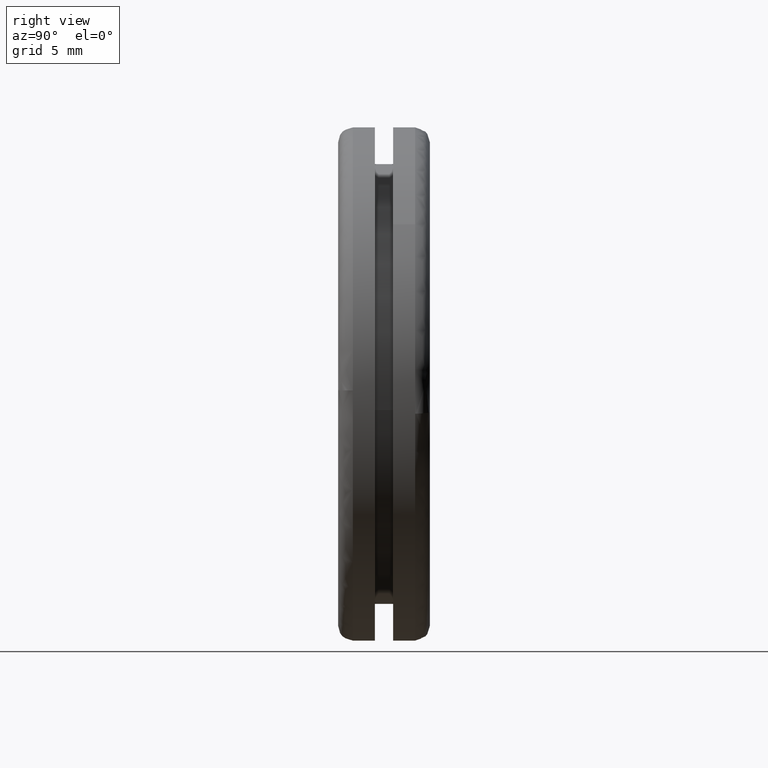
[diagram: clean part render]
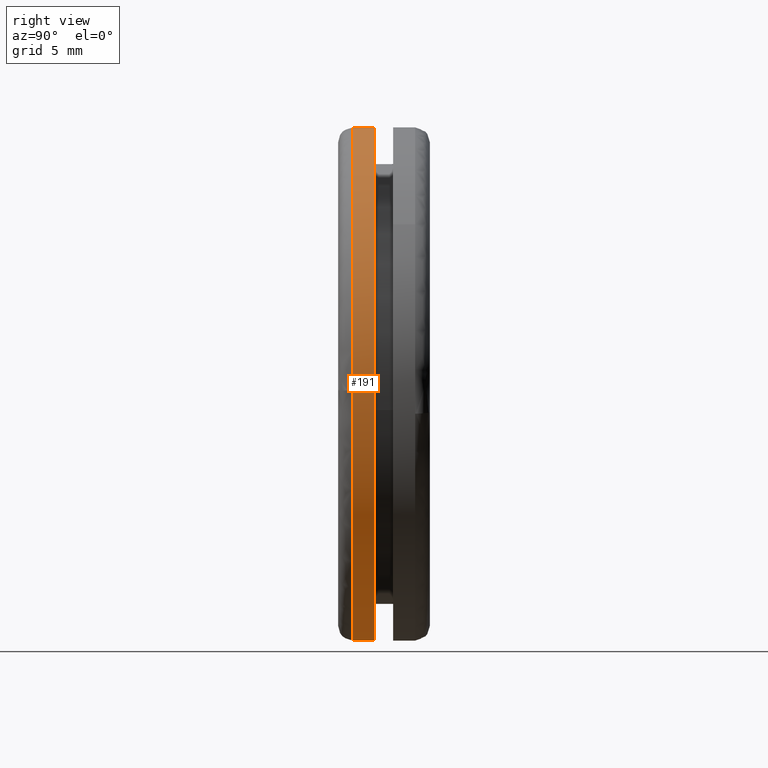
[diagram: same view with one face highlighted and labeled with its STEP entity id]
A machine part, right view. The second image highlights one B-rep face of the part: STEP entity #191.
In plain terms, the highlighted face is a freeform B-spline surface patch.
Its self-contained STEP definition (entity closure, byte-faithful):
#44=CARTESIAN_POINT('',(-13.741132797056794,3.045000000002589,-15.880216291148233));
#45=CARTESIAN_POINT('',(0.400068017547530,3.045000000002589,-28.116581006888243));
#46=CARTESIAN_POINT('',(14.187394359928859,3.045000000002588,-15.482824073012599));
#47=CARTESIAN_POINT('',(29.670218432941464,3.045000000002589,-1.295429713083735));
#48=CARTESIAN_POINT('',(15.482824073012599,3.045000000002588,14.187394359928859));
#49=CARTESIAN_POINT('',(1.295429713083735,3.045000000002589,29.670218432941464));
#50=CARTESIAN_POINT('',(-14.187394359928859,3.045000000002588,15.482824073012599));
#51=CARTESIAN_POINT('',(-13.741132797056794,1.153874999893835,-15.880216291148233));
#52=CARTESIAN_POINT('',(0.400068017547530,1.153874999893835,-28.116581006888243));
#53=CARTESIAN_POINT('',(14.187394359928859,1.153874999893835,-15.482824073012599));
#54=CARTESIAN_POINT('',(29.670218432941464,1.153874999893835,-1.295429713083735));
#55=CARTESIAN_POINT('',(15.482824073012599,1.153874999893835,14.187394359928859));
#56=CARTESIAN_POINT('',(1.295429713083735,1.153874999893835,29.670218432941464));
#57=CARTESIAN_POINT('',(-14.187394359928859,1.153874999893835,15.482824073012599));
#65=(BOUNDED_SURFACE()B_SPLINE_SURFACE(2,1,((#44,#51),(#45,#52),(#46,#53),(#47,#54),(#48,#55),(#49,#56),(#50,#57)),.UNSPECIFIED.,.F.,.F.,.U.)B_SPLINE_SURFACE_WITH_KNOTS((3,2,2,3),(2,2),(0.0,32.010424100192772,66.804363339532742,101.598302578872700),(0.0,1.0),.UNSPECIFIED.)GEOMETRIC_REPRESENTATION_ITEM()RATIONAL_B_SPLINE_SURFACE(((0.956886118190660,0.956886118190660),(0.730538238691624,0.730538238691624),(1.0,1.0),(0.707106781186548,0.707106781186548),(1.0,1.0),(0.707106781186548,0.707106781186548),(1.0,1.0)))REPRESENTATION_ITEM('')SURFACE());
#66=CARTESIAN_POINT('',(-13.741132103384320,3.000000000000033,-15.880216891382180));
#67=VERTEX_POINT('',#66);
#68=CARTESIAN_POINT('',(0.0,3.0,-21.0));
#69=VERTEX_POINT('',#68);
#70=CARTESIAN_POINT('',(-13.741132103384324,3.000000000000033,-15.880216891382176));
#71=CARTESIAN_POINT('',(-7.824350810012091,3.000000000000000,-21.000000000000004));
#72=CARTESIAN_POINT('',(0.0,3.0,-21.0));
#80=(BOUNDED_CURVE()B_SPLINE_CURVE(2,(#70,#71,#72),.UNSPECIFIED.,.F.,.U.)B_SPLINE_CURVE_WITH_KNOTS((3,3),(0.885882133147832,1.0),.UNSPECIFIED.)CURVE()GEOMETRIC_REPRESENTATION_ITEM()RATIONAL_B_SPLINE_CURVE((0.854663299575205,0.866302602614174,1.0))REPRESENTATION_ITEM(''));
#81=EDGE_CURVE('',#67,#69,#80,.T.);
#82=ORIENTED_EDGE('',*,*,#81,.T.);
#83=CARTESIAN_POINT('',(0.0,3.0,21.0));
#84=VERTEX_POINT('',#83);
#85=CARTESIAN_POINT('',(0.0,3.0,-21.0));
#86=CARTESIAN_POINT('',(21.000000000000007,3.000000000000000,-21.000000000000007));
#87=CARTESIAN_POINT('',(21.0,3.0,-3.061516E-016));
#88=CARTESIAN_POINT('',(21.000000000000007,3.000000000000000,21.000000000000007));
#89=CARTESIAN_POINT('',(0.0,3.0,21.0));
#97=(BOUNDED_CURVE()B_SPLINE_CURVE(2,(#85,#86,#87,#88,#89),.UNSPECIFIED.,.F.,.U.)B_SPLINE_CURVE_WITH_KNOTS((3,2,3),(0.0,0.250000000000000,0.500000000000000),.UNSPECIFIED.)CURVE()GEOMETRIC_REPRESENTATION_ITEM()RATIONAL_B_SPLINE_CURVE((1.0,0.707106781186547,1.0,0.707106781186547,1.0))REPRESENTATION_ITEM(''));
#98=EDGE_CURVE('',#69,#84,#97,.T.);
#99=ORIENTED_EDGE('',*,*,#98,.T.);
#100=CARTESIAN_POINT('',(-14.187393528154630,3.0,15.482824835193190));
#101=VERTEX_POINT('',#100);
#102=CARTESIAN_POINT('',(0.0,3.0,21.0));
#103=CARTESIAN_POINT('',(-8.166452719523072,3.0,21.0));
#104=CARTESIAN_POINT('',(-14.187393528154642,3.0,15.482824835193217));
#112=(BOUNDED_CURVE()B_SPLINE_CURVE(2,(#102,#103,#104),.UNSPECIFIED.,.F.,.U.)B_SPLINE_CURVE_WITH_KNOTS((3,3),(0.500000000000000,0.618415200974131),.UNSPECIFIED.)CURVE()GEOMETRIC_REPRESENTATION_ITEM()RATIONAL_B_SPLINE_CURVE((1.0,0.861267962520980,0.853959781838990))REPRESENTATION_ITEM(''));
#113=EDGE_CURVE('',#84,#101,#112,.T.);
#114=ORIENTED_EDGE('',*,*,#113,.T.);
#115=CARTESIAN_POINT('',(-14.187393490254490,1.199999999972146,15.482824869922180));
#116=VERTEX_POINT('',#115);
#117=CARTESIAN_POINT('',(-14.187393528154630,3.0,15.482824835193190));
#118=CARTESIAN_POINT('',(-14.187393490254490,1.199999999972146,15.482824869922180));
#119=QUASI_UNIFORM_CURVE('',1,(#117,#118),.UNSPECIFIED.,.F.,.U.);
#120=EDGE_CURVE('',#101,#116,#119,.T.);
#121=ORIENTED_EDGE('',*,*,#120,.T.);
#122=CARTESIAN_POINT('',(0.0,1.200000000000000,21.0));
#123=VERTEX_POINT('',#122);
#124=CARTESIAN_POINT('',(0.0,1.200000000000000,21.0));
#125=CARTESIAN_POINT('',(-8.166452689933331,1.200000000000000,21.000000000000004));
#126=CARTESIAN_POINT('',(-14.187393490254468,1.199999999972103,15.482824869922169));
#134=(BOUNDED_CURVE()B_SPLINE_CURVE(2,(#124,#125,#126),.UNSPECIFIED.,.F.,.U.)B_SPLINE_CURVE_WITH_KNOTS((3,3),(0.500000000000000,0.618415200604597),.UNSPECIFIED.)CURVE()GEOMETRIC_REPRESENTATION_ITEM()RATIONAL_B_SPLINE_CURVE((1.0,0.861267962953915,0.853959781884603))REPRESENTATION_ITEM(''));
#135=EDGE_CURVE('',#123,#116,#134,.T.);
#136=ORIENTED_EDGE('',*,*,#135,.F.);
#137=CARTESIAN_POINT('',(20.993367974949280,1.199999999896488,-0.527732004310620));
#138=VERTEX_POINT('',#137);
#139=CARTESIAN_POINT('',(20.993367974949287,1.199999999896487,-0.527732004310620));
#140=CARTESIAN_POINT('',(21.000000000000004,1.200000000000000,-0.263907674591506));
#141=CARTESIAN_POINT('',(21.0,1.200000000000000,-3.061516E-016));
#142=CARTESIAN_POINT('',(21.000000000000007,1.200000000000000,21.000000000000007));
#143=CARTESIAN_POINT('',(0.0,1.200000000000000,21.0));
#151=(BOUNDED_CURVE()B_SPLINE_CURVE(2,(#139,#140,#141,#142,#143),.UNSPECIFIED.,.F.,.U.)B_SPLINE_CURVE_WITH_KNOTS((3,2,3),(0.245579891769799,0.250000000000000,0.500000000000000),.UNSPECIFIED.)CURVE()GEOMETRIC_REPRESENTATION_ITEM()RATIONAL_B_SPLINE_CURVE((0.989826157681556,0.994821521091810,1.0,0.707106781186547,1.0))REPRESENTATION_ITEM(''));
#152=EDGE_CURVE('',#138,#123,#151,.T.);
#153=ORIENTED_EDGE('',*,*,#152,.F.);
#154=CARTESIAN_POINT('',(0.0,1.200000000000000,-21.0));
#155=VERTEX_POINT('',#154);
#156=CARTESIAN_POINT('',(0.0,1.200000000000000,-21.0));
#157=CARTESIAN_POINT('',(20.478735399792605,1.200000000000000,-21.000000000000007));
#158=CARTESIAN_POINT('',(20.993367974949283,1.199999999896487,-0.527732004310620));
#166=(BOUNDED_CURVE()B_SPLINE_CURVE(2,(#156,#157,#158),.UNSPECIFIED.,.F.,.U.)B_SPLINE_CURVE_WITH_KNOTS((3,3),(0.0,0.245579891769799),.UNSPECIFIED.)CURVE()GEOMETRIC_REPRESENTATION_ITEM()RATIONAL_B_SPLINE_CURVE((1.0,0.712285260094737,0.989826157681556))REPRESENTATION_ITEM(''));
#167=EDGE_CURVE('',#155,#138,#166,.T.);
#168=ORIENTED_EDGE('',*,*,#167,.F.);
#169=CARTESIAN_POINT('',(-13.741132111742621,1.200000000000000,-15.880216884149750));
#170=VERTEX_POINT('',#169);
#171=CARTESIAN_POINT('',(-13.741132111742619,1.199999999999999,-15.880216884149753));
#172=CARTESIAN_POINT('',(-7.824350822599507,1.200000000000000,-20.999999999999996));
#173=CARTESIAN_POINT('',(0.0,1.200000000000000,-21.0));
#181=(BOUNDED_CURVE()B_SPLINE_CURVE(2,(#171,#172,#173),.UNSPECIFIED.,.F.,.U.)B_SPLINE_CURVE_WITH_KNOTS((3,3),(0.885882132988790,1.0),.UNSPECIFIED.)CURVE()GEOMETRIC_REPRESENTATION_ITEM()RATIONAL_B_SPLINE_CURVE((0.854663299542762,0.866302602427844,1.0))REPRESENTATION_ITEM(''));
#182=EDGE_CURVE('',#170,#155,#181,.T.);
#183=ORIENTED_EDGE('',*,*,#182,.F.);
#184=CARTESIAN_POINT('',(-13.741132103384320,3.000000000000033,-15.880216891382180));
#185=CARTESIAN_POINT('',(-13.741132111742621,1.200000000000000,-15.880216884149750));
#186=QUASI_UNIFORM_CURVE('',1,(#184,#185),.UNSPECIFIED.,.F.,.U.);
#187=EDGE_CURVE('',#67,#170,#186,.T.);
#188=ORIENTED_EDGE('',*,*,#187,.F.);
#189=EDGE_LOOP('',(#82,#99,#114,#121,#136,#153,#168,#183,#188));
#190=FACE_OUTER_BOUND('',#189,.T.);
#191=ADVANCED_FACE('',(#190),#65,.T.);